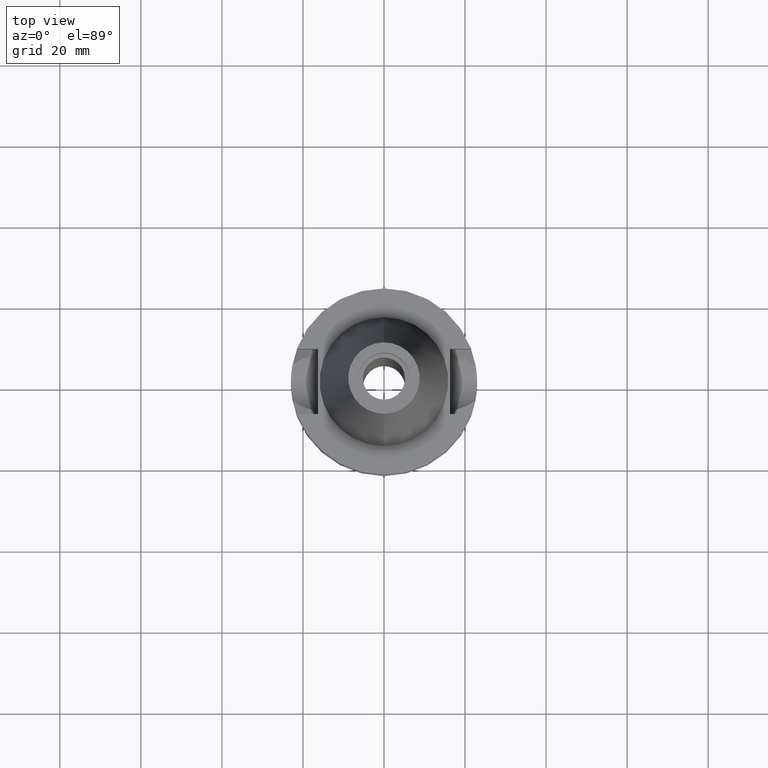
[diagram: clean part render]
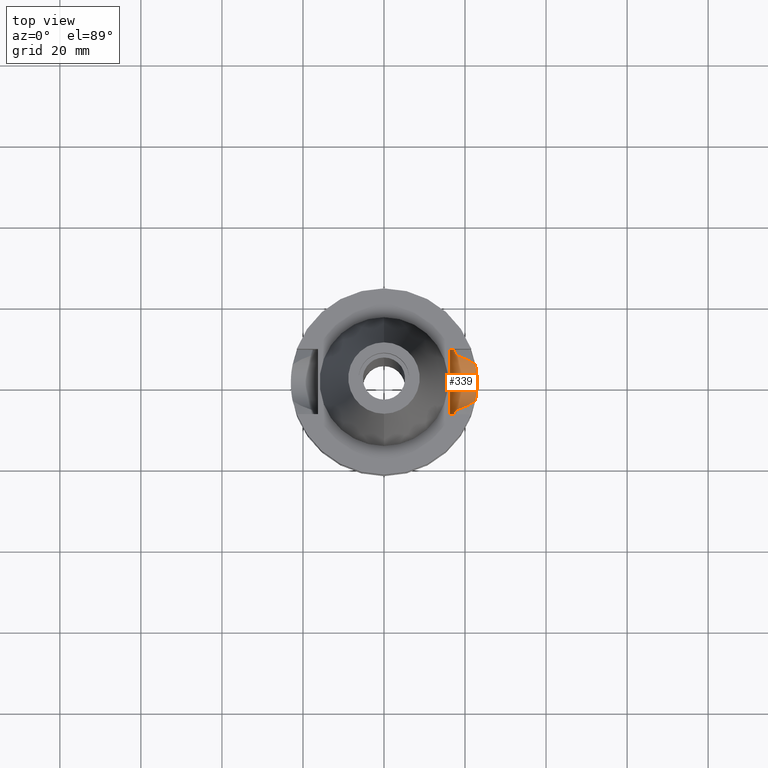
[diagram: same view with one face highlighted and labeled with its STEP entity id]
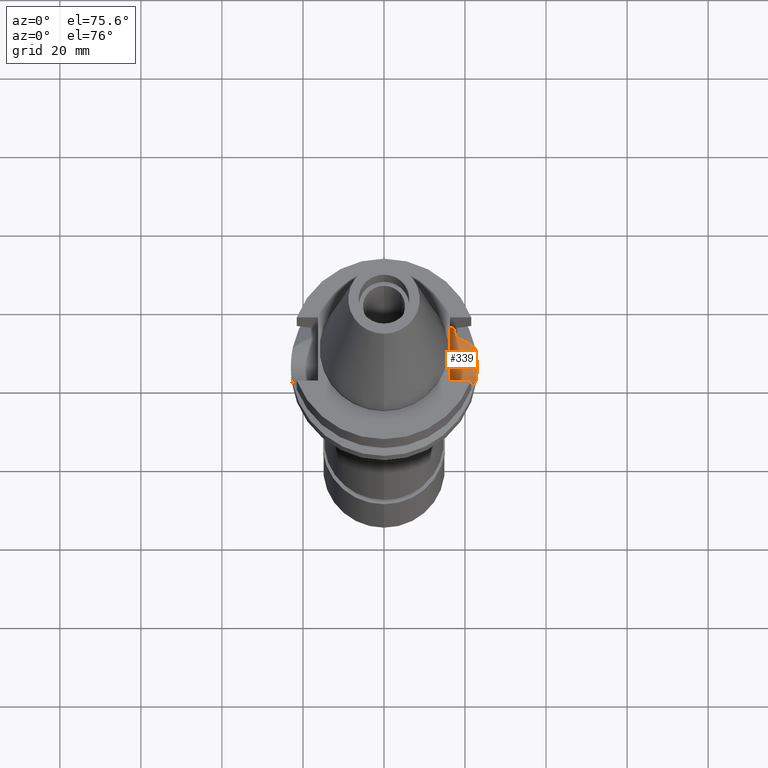
[diagram: same view with one face highlighted and labeled with its STEP entity id]
A machine part, top view. The second image highlights one B-rep face of the part: STEP entity #339.
A second angle (auxiliary view) of the same face is appended — the face is thin or edge-on in the first view.
In plain terms, the highlighted cylindrical surface (edge-blend (fillet) strip) has radius 8.05 mm, axis along (1, 0, 0).
Its self-contained STEP definition (entity closure, byte-faithful):
#8 = CARTESIAN_POINT ( 'NONE',  ( 17.75736593456000278, -6.758398853743999624, -15.32339055352999857 ) ) ;
#44 = CYLINDRICAL_SURFACE ( 'NONE', #1332, 8.050000000000000711 ) ;
#49 = VERTEX_POINT ( 'NONE', #170 ) ;
#58 = B_SPLINE_CURVE_WITH_KNOTS ( 'NONE', 3,
 ( #119, #2400, #1251, #586, #1675, #2411, #367, #310, #987, #1911, #2883, #625, #652, #1569, #1349 ),
 .UNSPECIFIED., .F., .F.,
 ( 4, 2, 2, 1, 1, 1, 2, 2, 4 ),
 ( 0.0000000000000000000, 0.2500000000000237033, 0.3750000000000359157, 0.4375000000000423550, 0.4687500000000455191, 0.4843750000000470735, 0.4921875000000469624, 0.5000000000000467404, 1.000000000000000000 ),
 .UNSPECIFIED. ) ;
#69 = CARTESIAN_POINT ( 'NONE',  ( 18.30417677704669899, -8.050000009833846448, -11.30245973841521945 ) ) ;
#88 = EDGE_CURVE ( 'NONE', #2710, #2762, #2177, .T. ) ;
#116 = CARTESIAN_POINT ( 'NONE',  ( 22.89869250011097179, 2.155718604213055833, -18.70627604973245894 ) ) ;
#119 = CARTESIAN_POINT ( 'NONE',  ( 17.23531135313999840, -7.996501749111999402, -11.87660739352999961 ) ) ;
#152 = EDGE_CURVE ( 'NONE', #49, #2180, #1398, .T. ) ;
#155 = LINE ( 'NONE', #1061, #2236 ) ;
#159 = CARTESIAN_POINT ( 'NONE',  ( 22.86636748228442784, -2.474914257455382405, -18.61034404076976401 ) ) ;
#170 = CARTESIAN_POINT ( 'NONE',  ( 17.75736593456000278, 6.758398853743999624, -15.32339055352999857 ) ) ;
#172 = CARTESIAN_POINT ( 'NONE',  ( 22.55786346208000026, 4.488072640470000430, -17.63279163029000074 ) ) ;
#199 = CARTESIAN_POINT ( 'NONE',  ( 17.47454530899269542, 7.459745912395919554, -13.97656768010448580 ) ) ;
#213 = CARTESIAN_POINT ( 'NONE',  ( 17.45719732147605896, 7.500152050045686636, -13.87559267626339476 ) ) ;
#217 = CARTESIAN_POINT ( 'NONE',  ( 16.29999999999999716, 0.0000000000000000000, -10.94999999999999929 ) ) ;
#218 = EDGE_CURVE ( 'NONE', #403, #49, #1249, .T. ) ;
#227 = CARTESIAN_POINT ( 'NONE',  ( 22.55786346208000026, -4.488072640470000430, -17.63279163029000074 ) ) ;
#236 = DIRECTION ( 'NONE',  ( 0.0000000000000000000, 0.0000000000000000000, -1.000000000000000000 ) ) ;
#251 = CARTESIAN_POINT ( 'NONE',  ( 17.51073134978243573, 7.374835522291433243, -14.18047752169724163 ) ) ;
#252 = ORIENTED_EDGE ( 'NONE', *, *, #2334, .F. ) ;
#263 = CARTESIAN_POINT ( 'NONE',  ( 17.32791029659046345, 7.797415212272130525, -13.04847605304218483 ) ) ;
#276 = DIRECTION ( 'NONE',  ( 1.000000000000000000, 0.0000000000000000000, 0.0000000000000000000 ) ) ;
#294 = ORIENTED_EDGE ( 'NONE', *, *, #2078, .T. ) ;
#310 = CARTESIAN_POINT ( 'NONE',  ( 17.40050649190218479, -7.630573670531443753, -13.51506551006494306 ) ) ;
#337 = CARTESIAN_POINT ( 'NONE',  ( 18.96736186693999926, -8.050001277873001015, -10.94999977540000025 ) ) ;
#339 = ADVANCED_FACE ( 'NONE', ( #2294 ), #44, .F. ) ;
#352 = CARTESIAN_POINT ( 'NONE',  ( 17.53684213131753111, 7.312763963794017386, -14.31903632817254568 ) ) ;
#367 = CARTESIAN_POINT ( 'NONE',  ( 17.38156500873806110, -7.673733568345529221, -13.38455737038922067 ) ) ;
#371 = CARTESIAN_POINT ( 'NONE',  ( 23.00000044604999871, -0.7639198402709733715, -19.00000000000000355 ) ) ;
#381 = CARTESIAN_POINT ( 'NONE',  ( 22.70467258275669309, 3.750183491967929772, -18.12834802083744989 ) ) ;
#387 = EDGE_CURVE ( 'NONE', #1532, #466, #747, .T. ) ;
#400 = ORIENTED_EDGE ( 'NONE', *, *, #1469, .T. ) ;
#403 = VERTEX_POINT ( 'NONE', #172 ) ;
#422 = CARTESIAN_POINT ( 'NONE',  ( 22.55786346208000026, -4.488072640470000430, -17.63279163029000074 ) ) ;
#426 = AXIS2_PLACEMENT_3D ( 'NONE', #217, #2722, #236 ) ;
#459 = CARTESIAN_POINT ( 'NONE',  ( 21.37344794603593812, 5.343258989380865742, -17.05846002347190193 ) ) ;
#466 = VERTEX_POINT ( 'NONE', #921 ) ;
#553 = CARTESIAN_POINT ( 'NONE',  ( 22.88447367259623277, 2.301039541829223101, -18.66413484251108557 ) ) ;
#570 = CARTESIAN_POINT ( 'NONE',  ( 22.88310825622225408, 2.314576423008080308, -18.66008170511432240 ) ) ;
#572 = CARTESIAN_POINT ( 'NONE',  ( 17.75736593456000278, 6.758398853743999624, -15.32339055352999857 ) ) ;
#586 = CARTESIAN_POINT ( 'NONE',  ( 17.32020050329996508, -7.811458914748127924, -12.90105448522594855 ) ) ;
#590 = VERTEX_POINT ( 'NONE', #2569 ) ;
#595 = CARTESIAN_POINT ( 'NONE',  ( 22.88689308146437540, 2.276835504116469622, -18.67131332279036471 ) ) ;
#597 = CARTESIAN_POINT ( 'NONE',  ( 17.68527682807044243, 6.947809492496855199, -15.03068569944423949 ) ) ;
#600 = CARTESIAN_POINT ( 'NONE',  ( 22.77604614579763975, -3.203243446311297760, -18.33795012630933385 ) ) ;
#616 = CARTESIAN_POINT ( 'NONE',  ( 22.81272658247721452, 3.007302590028213984, -18.45107973187498018 ) ) ;
#620 = DIRECTION ( 'NONE',  ( -0.9999999999998816502, 4.790775581495907912E-07, -8.420253777260848103E-08 ) ) ;
#625 = CARTESIAN_POINT ( 'NONE',  ( 17.41902787752750825, -7.588152995021152591, -13.63747255038116712 ) ) ;
#633 = CARTESIAN_POINT ( 'NONE',  ( 17.62113473894862636, 7.108360423158726960, -14.74096325190757817 ) ) ;
#648 = CARTESIAN_POINT ( 'NONE',  ( 22.88082950798349202, -2.337004959226496315, -18.65331534968794358 ) ) ;
#652 = CARTESIAN_POINT ( 'NONE',  ( 17.50087097185477703, -7.400178022992848881, -14.16642114493828153 ) ) ;
#687 = CARTESIAN_POINT ( 'NONE',  ( 19.88838796747590720, -5.976666637444247421, -16.34317465394291347 ) ) ;
#747 = B_SPLINE_CURVE_WITH_KNOTS ( 'NONE', 3,
 ( #1914, #2211, #2843, #600, #1522, #1975, #1301, #159, #1789, #2672, #2019, #648, #2414, #371, #2660 ),
 .UNSPECIFIED., .F., .F.,
 ( 4, 2, 2, 1, 1, 1, 2, 2, 4 ),
 ( 0.0000000000000000000, 0.2500000000000036082, 0.3750000000000052180, 0.4375000000000058287, 0.4687500000000066058, 0.4843750000000067724, 0.4921875000000066058, 0.5000000000000064393, 1.000000000000000000 ),
 .UNSPECIFIED. ) ;
#814 = DIRECTION ( 'NONE',  ( 0.9999999999976612042, -2.130104035149915589E-06, -3.746083742387856505E-07 ) ) ;
#845 = VERTEX_POINT ( 'NONE', #2552 ) ;
#871 = B_SPLINE_CURVE_WITH_KNOTS ( 'NONE', 3,
 ( #2530, #2096, #1493, #1645 ),
 .UNSPECIFIED., .F., .F.,
 ( 4, 4 ),
 ( 0.0000000000000000000, 1.000000000000000000 ),
 .UNSPECIFIED. ) ;
#921 = CARTESIAN_POINT ( 'NONE',  ( 23.00000044605000227, 5.254056241686999469E-14, -19.00000145547000230 ) ) ;
#959 = ORIENTED_EDGE ( 'NONE', *, *, #2880, .T. ) ;
#987 = CARTESIAN_POINT ( 'NONE',  ( 17.41029186860523481, -7.608187570458765592, -13.58033536419120502 ) ) ;
#1061 = CARTESIAN_POINT ( 'NONE',  ( 16.29999999999999716, 8.050000000000000711, -10.94999999999999929 ) ) ;
#1089 = CIRCLE ( 'NONE', #426, 8.050000000000000711 ) ;
#1117 = CARTESIAN_POINT ( 'NONE',  ( 18.71034618666826788, -6.447024932737199343, -15.77811711004892992 ) ) ;
#1138 = CARTESIAN_POINT ( 'NONE',  ( 17.42163746040194638, 7.582158997746490492, -13.65434146900357604 ) ) ;
#1143 = EDGE_CURVE ( 'NONE', #466, #403, #1318, .T. ) ;
#1152 = CARTESIAN_POINT ( 'NONE',  ( 17.42912000651151061, 7.564956682217665040, -13.70217383710222769 ) ) ;
#1190 = B_SPLINE_CURVE_WITH_KNOTS ( 'NONE', 3,
 ( #337, #69, #2578, #2368 ),
 .UNSPECIFIED., .F., .F.,
 ( 4, 4 ),
 ( 0.0000000000000000000, 1.000000000000000000 ),
 .UNSPECIFIED. ) ;
#1249 = B_SPLINE_CURVE_WITH_KNOTS ( 'NONE', 3,
 ( #1624, #459, #2522, #2900 ),
 .UNSPECIFIED., .F., .F.,
 ( 4, 4 ),
 ( 0.0000000000000000000, 1.000000000000000000 ),
 .UNSPECIFIED. ) ;
#1251 = CARTESIAN_POINT ( 'NONE',  ( 17.27395659107105885, -7.913383733947945586, -12.45760532095148854 ) ) ;
#1261 = CARTESIAN_POINT ( 'NONE',  ( 22.94838639019631188, 1.548059420552095888, -18.85226265941276225 ) ) ;
#1276 = CARTESIAN_POINT ( 'NONE',  ( 23.00000044605000227, 5.254056241686999469E-14, -19.00000145547000230 ) ) ;
#1301 = CARTESIAN_POINT ( 'NONE',  ( 22.84961707709253176, -2.626411473035168864, -18.56046355644068768 ) ) ;
#1316 = EDGE_CURVE ( 'NONE', #1362, #590, #58, .T. ) ;
#1318 = B_SPLINE_CURVE_WITH_KNOTS ( 'NONE', 3,
 ( #1276, #2852, #2424, #2822, #1261, #2867, #2172, #116, #1745, #595, #553, #570, #616, #381, #2600 ),
 .UNSPECIFIED., .F., .F.,
 ( 4, 2, 2, 1, 1, 1, 2, 2, 4 ),
 ( 0.0000000000000000000, 0.2499999999999911182, 0.3749999999999863443, 0.4374999999999839573, 0.4687499999999828471, 0.4843749999999822919, 0.4921874999999818479, 0.4999999999999814038, 1.000000000000000000 ),
 .UNSPECIFIED. ) ;
#1332 = AXIS2_PLACEMENT_3D ( 'NONE', #2320, #276, #2105 ) ;
#1349 = CARTESIAN_POINT ( 'NONE',  ( 17.75736593456000278, -6.758398853743999624, -15.32339055352999857 ) ) ;
#1362 = VERTEX_POINT ( 'NONE', #2541 ) ;
#1366 = CARTESIAN_POINT ( 'NONE',  ( 20.33559664281873225, -5.774885980035437960, -16.55833822866758354 ) ) ;
#1370 = CARTESIAN_POINT ( 'NONE',  ( 17.26628387159192002, 7.929746129048851344, -12.45262345363194534 ) ) ;
#1398 = B_SPLINE_CURVE_WITH_KNOTS ( 'NONE', 3,
 ( #572, #597, #633, #352, #251, #199, #213, #2304, #1152, #2259, #2719, #1138, #263, #1370, #1607 ),
 .UNSPECIFIED., .F., .F.,
 ( 4, 2, 2, 1, 1, 1, 2, 2, 4 ),
 ( 0.0000000000000000000, 0.2499999999999755751, 0.3749999999999639733, 0.4374999999999588107, 0.4687499999999562572, 0.4843749999999549249, 0.4921874999999550360, 0.4999999999999551470, 1.000000000000000000 ),
 .UNSPECIFIED. ) ;
#1442 = ORIENTED_EDGE ( 'NONE', *, *, #218, .T. ) ;
#1448 = CARTESIAN_POINT ( 'NONE',  ( 16.29999999999999716, -8.050000000000000711, -10.94999999999999929 ) ) ;
#1464 = ORIENTED_EDGE ( 'NONE', *, *, #152, .T. ) ;
#1469 = EDGE_CURVE ( 'NONE', #590, #1532, #2340, .T. ) ;
#1493 = CARTESIAN_POINT ( 'NONE',  ( 18.30334768179486815, 8.049999956193227391, -11.30291651685073084 ) ) ;
#1522 = CARTESIAN_POINT ( 'NONE',  ( 22.80063993349638096, -3.023486799320353580, -18.41302963760912448 ) ) ;
#1532 = VERTEX_POINT ( 'NONE', #227 ) ;
#1569 = CARTESIAN_POINT ( 'NONE',  ( 17.61323061602289997, -7.137107428142776655, -14.73815501058251520 ) ) ;
#1587 = ORIENTED_EDGE ( 'NONE', *, *, #1316, .T. ) ;
#1603 = CARTESIAN_POINT ( 'NONE',  ( 18.24676396947669232, -6.607560472926488515, -15.55648794731250106 ) ) ;
#1607 = CARTESIAN_POINT ( 'NONE',  ( 17.23531622904000216, 7.996491146277000972, -11.87660607780999911 ) ) ;
#1624 = CARTESIAN_POINT ( 'NONE',  ( 22.55786346208000026, 4.488072640470000430, -17.63279163029000074 ) ) ;
#1630 = ORIENTED_EDGE ( 'NONE', *, *, #387, .T. ) ;
#1645 = CARTESIAN_POINT ( 'NONE',  ( 18.96738966530000070, 8.049994318182998043, -10.95000099923000114 ) ) ;
#1675 = CARTESIAN_POINT ( 'NONE',  ( 17.33753291668522678, -7.772931439720965230, -13.04953900759877250 ) ) ;
#1745 = CARTESIAN_POINT ( 'NONE',  ( 22.89049339228006019, 2.240519772402555176, -18.68199100502956611 ) ) ;
#1789 = CARTESIAN_POINT ( 'NONE',  ( 22.87434525495998727, -2.399721912326016060, -18.63405589535602402 ) ) ;
#1815 = CARTESIAN_POINT ( 'NONE',  ( 21.93955586547352254, -4.934510743384564968, -17.33296982733608260 ) ) ;
#1829 = CARTESIAN_POINT ( 'NONE',  ( 20.04044920271718055, -5.910146353153317378, -16.41627809615928868 ) ) ;
#1883 = VERTEX_POINT ( 'NONE', #2054 ) ;
#1884 = CARTESIAN_POINT ( 'NONE',  ( 17.23531622904000216, 7.996491146277000972, -11.87660607780999911 ) ) ;
#1911 = CARTESIAN_POINT ( 'NONE',  ( 17.41455302328961352, -7.598419946122616508, -13.60830999035586508 ) ) ;
#1914 = CARTESIAN_POINT ( 'NONE',  ( 22.55786346208000026, -4.488072640470000430, -17.63279163029000074 ) ) ;
#1975 = CARTESIAN_POINT ( 'NONE',  ( 22.83389697005820196, -2.758069658239559629, -18.51336550152592508 ) ) ;
#2011 = CARTESIAN_POINT ( 'NONE',  ( 21.21492282189977985, -5.360271577186511927, -16.98189555827876873 ) ) ;
#2019 = CARTESIAN_POINT ( 'NONE',  ( 22.87988279952239168, -2.346244596099132718, -18.65050395887459800 ) ) ;
#2038 = CARTESIAN_POINT ( 'NONE',  ( 20.28692642516475431, -5.797553946567653327, -16.53490232736275800 ) ) ;
#2054 = CARTESIAN_POINT ( 'NONE',  ( 18.96738966530000070, 8.049994318182998043, -10.95000099923000114 ) ) ;
#2067 = EDGE_LOOP ( 'NONE', ( #1442, #1464, #294, #252, #2370, #2894, #959, #1587, #400, #1630, #2547 ) ) ;
#2078 = EDGE_CURVE ( 'NONE', #2180, #1883, #871, .T. ) ;
#2096 = CARTESIAN_POINT ( 'NONE',  ( 17.72598986970820079, 8.027133616241423297, -11.61218197829200349 ) ) ;
#2105 = DIRECTION ( 'NONE',  ( 0.0000000000000000000, 0.0000000000000000000, -1.000000000000000000 ) ) ;
#2172 = CARTESIAN_POINT ( 'NONE',  ( 22.91428424615011750, 1.985884398308523036, -18.75233391785344850 ) ) ;
#2177 = LINE ( 'NONE', #2432, #2635 ) ;
#2180 = VERTEX_POINT ( 'NONE', #1884 ) ;
#2211 = CARTESIAN_POINT ( 'NONE',  ( 22.63127533738613195, -4.119091299845491605, -17.88059451736343775 ) ) ;
#2227 = CARTESIAN_POINT ( 'NONE',  ( 20.21361856956981029, -5.831484442647619559, -16.49960865650004038 ) ) ;
#2236 = VECTOR ( 'NONE', #814, 1000.000000000000000 ) ;
#2259 = CARTESIAN_POINT ( 'NONE',  ( 17.42527193745868530, 7.573805764804249385, -13.67764394464710875 ) ) ;
#2294 = FACE_OUTER_BOUND ( 'NONE', #2067, .T. ) ;
#2304 = CARTESIAN_POINT ( 'NONE',  ( 17.43826181024353517, 7.543903599327797416, -13.75965695396910071 ) ) ;
#2320 = CARTESIAN_POINT ( 'NONE',  ( 16.29999999999999716, 0.0000000000000000000, -10.94999999999999929 ) ) ;
#2334 = EDGE_CURVE ( 'NONE', #845, #1883, #155, .T. ) ;
#2340 = B_SPLINE_CURVE_WITH_KNOTS ( 'NONE', 3,
 ( #8, #1603, #1117, #2465, #2913, #687, #1829, #2227, #2038, #1366, #2451, #2011, #1815, #422 ),
 .UNSPECIFIED., .F., .F.,
 ( 4, 2, 2, 1, 1, 2, 2, 4 ),
 ( 0.0000000000000000000, 0.2500000000000045519, 0.3750000000000067724, 0.4375000000000083267, 0.4687500000000082157, 0.4843750000000082712, 0.5000000000000083267, 1.000000000000000000 ),
 .UNSPECIFIED. ) ;
#2368 = CARTESIAN_POINT ( 'NONE',  ( 17.23531135313999840, -7.996501749111999402, -11.87660739352999961 ) ) ;
#2370 = ORIENTED_EDGE ( 'NONE', *, *, #2528, .T. ) ;
#2400 = CARTESIAN_POINT ( 'NONE',  ( 17.25079842015427545, -7.963112712673317439, -12.16467410599139853 ) ) ;
#2411 = CARTESIAN_POINT ( 'NONE',  ( 17.36640820072655345, -7.707990843838181227, -13.27279658043158506 ) ) ;
#2414 = CARTESIAN_POINT ( 'NONE',  ( 22.96068632215177274, -1.550941513677163819, -18.89044221460695283 ) ) ;
#2424 = CARTESIAN_POINT ( 'NONE',  ( 22.99016919731596786, 0.7696193647269354843, -18.97276422500866389 ) ) ;
#2432 = CARTESIAN_POINT ( 'NONE',  ( 18.96736186693999926, -8.050001277873001015, -10.94999977540000025 ) ) ;
#2451 = CARTESIAN_POINT ( 'NONE',  ( 20.35799687852934170, -5.764393097558390799, -16.56912614541773721 ) ) ;
#2465 = CARTESIAN_POINT ( 'NONE',  ( 19.36699578586794956, -6.194531271661527505, -16.09279774561746024 ) ) ;
#2522 = CARTESIAN_POINT ( 'NONE',  ( 19.77328210352927229, 6.137069160735738826, -16.28355951937685830 ) ) ;
#2528 = EDGE_CURVE ( 'NONE', #845, #2762, #1089, .T. ) ;
#2530 = CARTESIAN_POINT ( 'NONE',  ( 17.23531622904000216, 7.996491146277000972, -11.87660607780999911 ) ) ;
#2541 = CARTESIAN_POINT ( 'NONE',  ( 17.23531135313999840, -7.996501749111999402, -11.87660739352999961 ) ) ;
#2547 = ORIENTED_EDGE ( 'NONE', *, *, #1143, .T. ) ;
#2552 = CARTESIAN_POINT ( 'NONE',  ( 16.29999999999999716, 8.050000000000000711, -10.94999999999999929 ) ) ;
#2569 = CARTESIAN_POINT ( 'NONE',  ( 17.75736593456000278, -6.758398853743999624, -15.32339055352999857 ) ) ;
#2578 = CARTESIAN_POINT ( 'NONE',  ( 17.72682660578003322, -8.027186146920309184, -11.61172867019492472 ) ) ;
#2600 = CARTESIAN_POINT ( 'NONE',  ( 22.55786346208000026, 4.488072640470000430, -17.63279163029000074 ) ) ;
#2635 = VECTOR ( 'NONE', #620, 1000.000000000000114 ) ;
#2660 = CARTESIAN_POINT ( 'NONE',  ( 23.00000044605000227, 5.254056241686999469E-14, -19.00000145547000230 ) ) ;
#2672 = CARTESIAN_POINT ( 'NONE',  ( 22.87767913683801524, -2.367618998491276994, -18.64395900712701959 ) ) ;
#2710 = VERTEX_POINT ( 'NONE', #2782 ) ;
#2719 = CARTESIAN_POINT ( 'NONE',  ( 17.42272207960842323, 7.579666851679923489, -13.66131438038761026 ) ) ;
#2722 = DIRECTION ( 'NONE',  ( -1.000000000000000000, 0.0000000000000000000, 0.0000000000000000000 ) ) ;
#2762 = VERTEX_POINT ( 'NONE', #1448 ) ;
#2782 = CARTESIAN_POINT ( 'NONE',  ( 18.96736186693999926, -8.050001277873001015, -10.94999977540000025 ) ) ;
#2822 = CARTESIAN_POINT ( 'NONE',  ( 22.96067545111385755, 1.353190260983862636, -18.88788486070053452 ) ) ;
#2843 = CARTESIAN_POINT ( 'NONE',  ( 22.69499749272881672, -3.748138648519764526, -18.08542285026992147 ) ) ;
#2852 = CARTESIAN_POINT ( 'NONE',  ( 23.00000044605000582, 0.3819957946227836021, -19.00000000000000000 ) ) ;
#2867 = CARTESIAN_POINT ( 'NONE',  ( 22.92626608054472470, 1.840003316588117332, -18.78752662336288637 ) ) ;
#2880 = EDGE_CURVE ( 'NONE', #2710, #1362, #1190, .T. ) ;
#2883 = CARTESIAN_POINT ( 'NONE',  ( 17.41740877570401480, -7.591869531160985396, -13.62695997435324458 ) ) ;
#2894 = ORIENTED_EDGE ( 'NONE', *, *, #88, .F. ) ;
#2900 = CARTESIAN_POINT ( 'NONE',  ( 17.75736593456000278, 6.758398853743999624, -15.32339055352999857 ) ) ;
#2913 = CARTESIAN_POINT ( 'NONE',  ( 19.57942503116990807, -6.108417197979031599, -16.19473517994186551 ) ) ;